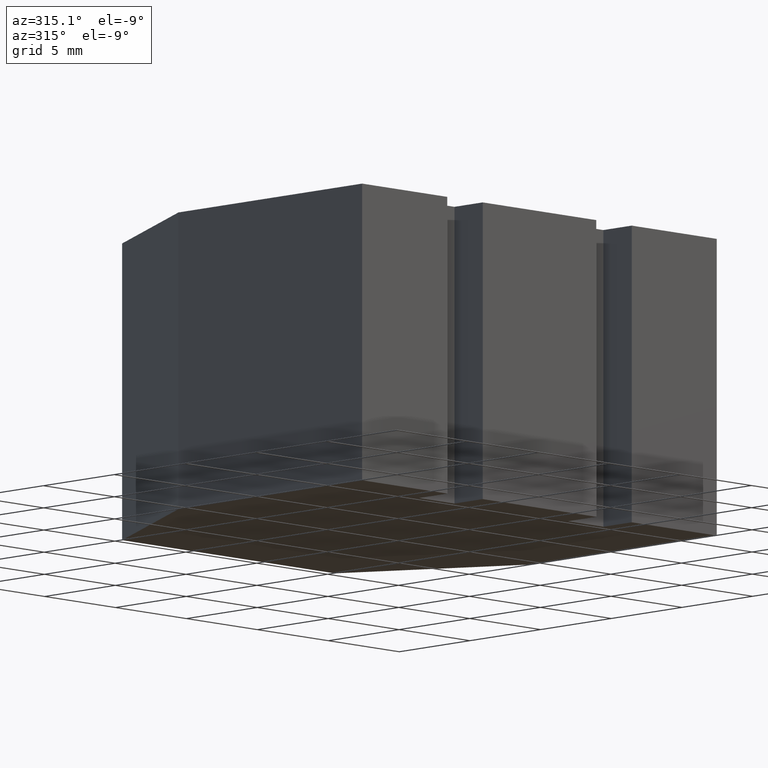
[diagram: clean part render]
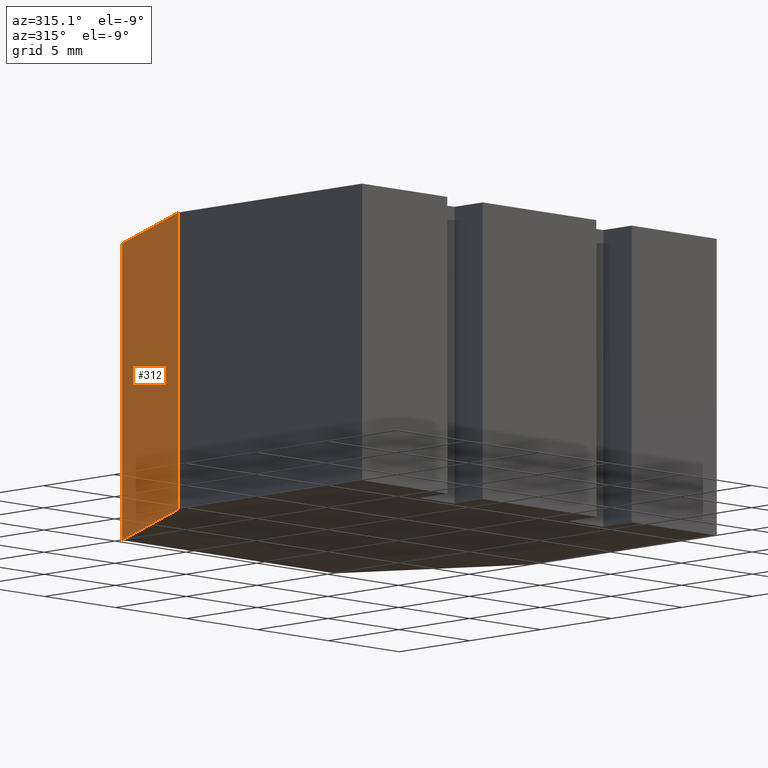
[diagram: same view with one face highlighted and labeled with its STEP entity id]
A machine part, auxiliary view. The second image highlights one B-rep face of the part: STEP entity #312.
In plain terms, the highlighted planar face has unit normal (-0.8742, 0.4856, 0).
Its self-contained STEP definition (entity closure, byte-faithful):
#26=FACE_OUTER_BOUND('',#42,.T.);
#42=EDGE_LOOP('',(#252,#253,#254,#255));
#59=LINE('',#459,#101);
#80=LINE('',#500,#122);
#81=LINE('',#503,#123);
#82=LINE('',#504,#124);
#101=VECTOR('',#372,10.);
#122=VECTOR('',#411,10.);
#123=VECTOR('',#414,10.);
#124=VECTOR('',#415,10.);
#143=VERTEX_POINT('',#456);
#144=VERTEX_POINT('',#458);
#155=VERTEX_POINT('',#498);
#156=VERTEX_POINT('',#502);
#171=EDGE_CURVE('',#144,#143,#59,.T.);
#192=EDGE_CURVE('',#155,#143,#80,.T.);
#193=EDGE_CURVE('',#155,#156,#81,.T.);
#194=EDGE_CURVE('',#156,#144,#82,.T.);
#252=ORIENTED_EDGE('',*,*,#193,.T.);
#253=ORIENTED_EDGE('',*,*,#194,.T.);
#254=ORIENTED_EDGE('',*,*,#171,.T.);
#255=ORIENTED_EDGE('',*,*,#192,.F.);
#296=PLANE('',#351);
#312=ADVANCED_FACE('',(#26),#296,.T.);
#351=AXIS2_PLACEMENT_3D('',#501,#412,#413);
#372=DIRECTION('',(-0.485642931178632,-0.874157276121538,0.));
#411=DIRECTION('',(0.,0.,-1.));
#412=DIRECTION('center_axis',(-0.874157276121538,0.485642931178632,0.));
#413=DIRECTION('ref_axis',(0.,0.,1.));
#414=DIRECTION('',(0.485642931178632,0.874157276121538,0.));
#415=DIRECTION('',(0.,0.,-1.));
#456=CARTESIAN_POINT('',(-12.5,13.,-7.5));
#458=CARTESIAN_POINT('',(-7.5,22.,-7.5));
#459=CARTESIAN_POINT('',(-12.5,13.,-7.5));
#498=CARTESIAN_POINT('',(-12.5,13.,7.5));
#500=CARTESIAN_POINT('',(-12.5,13.,0.));
#501=CARTESIAN_POINT('Origin',(-12.5,13.,0.));
#502=CARTESIAN_POINT('',(-7.5,22.,7.5));
#503=CARTESIAN_POINT('',(-12.5,13.,7.5));
#504=CARTESIAN_POINT('',(-7.5,22.,0.));